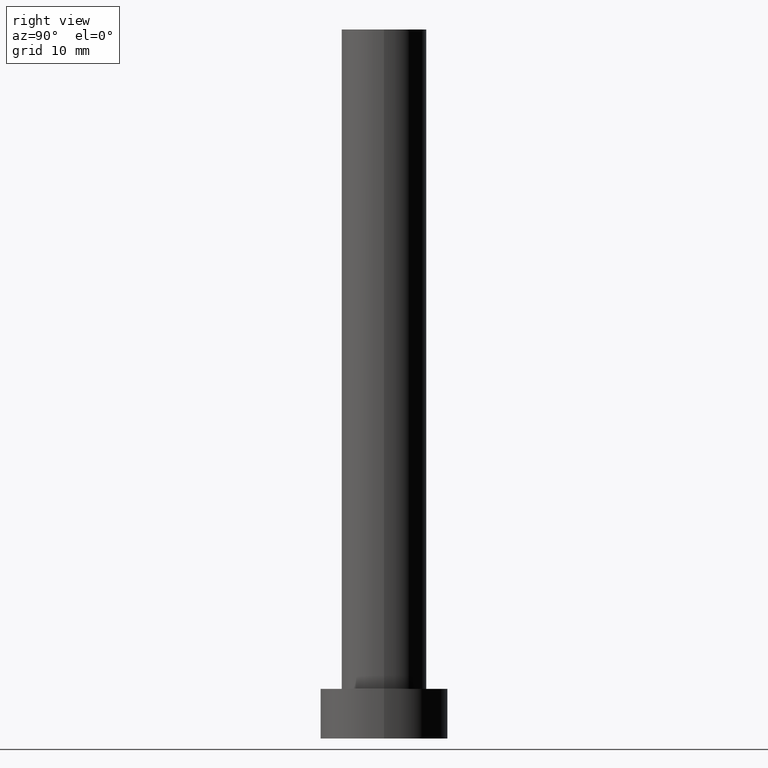
[diagram: clean part render]
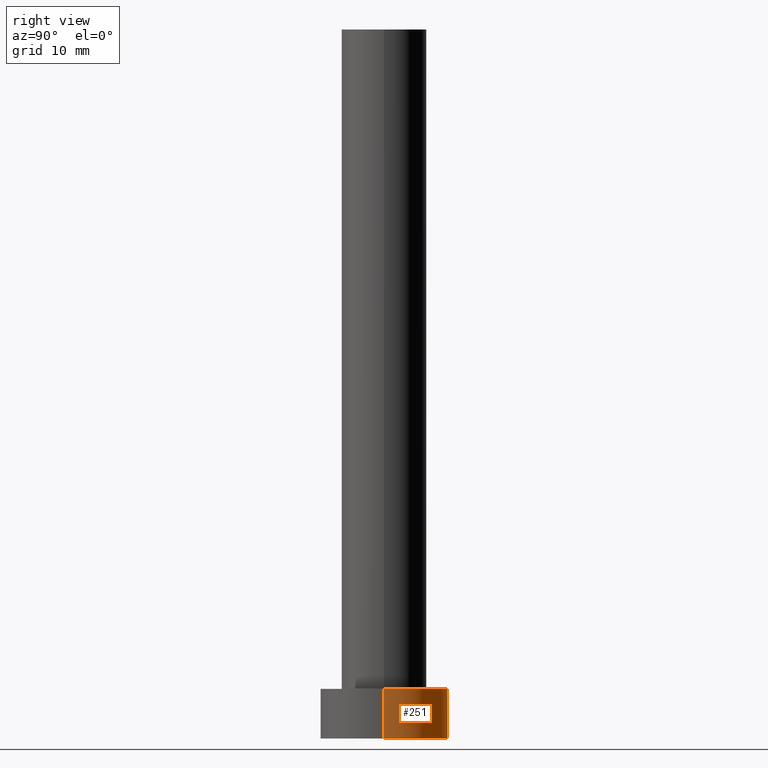
[diagram: same view with one face highlighted and labeled with its STEP entity id]
A machine part, right view. The second image highlights one B-rep face of the part: STEP entity #251.
In plain terms, the highlighted cylindrical surface (partial cylindrical patch) has radius 9 mm, axis along (-0, -0, -1).
Its self-contained STEP definition (entity closure, byte-faithful):
#1 = EDGE_CURVE ( 'NONE', #107, #247, #118, .T. ) ;
#3 = VERTEX_POINT ( 'NONE', #224 ) ;
#9 = CARTESIAN_POINT ( 'NONE',  ( 0.000000000000000000, 0.000000000000000000, 7.000000000000000000 ) ) ;
#32 = DIRECTION ( 'NONE',  ( 0.000000000000000000, 0.000000000000000000, 1.000000000000000000 ) ) ;
#47 = AXIS2_PLACEMENT_3D ( 'NONE', #84, #138, #117 ) ;
#49 = AXIS2_PLACEMENT_3D ( 'NONE', #9, #32, #230 ) ;
#69 = CARTESIAN_POINT ( 'NONE',  ( 9.000000000000000000, 1.102182119232617714E-15, 7.000000000000000000 ) ) ;
#73 = ORIENTED_EDGE ( 'NONE', *, *, #201, .F. ) ;
#74 = VERTEX_POINT ( 'NONE', #233 ) ;
#83 = FACE_OUTER_BOUND ( 'NONE', #93, .T. ) ;
#84 = CARTESIAN_POINT ( 'NONE',  ( 0.000000000000000000, 0.000000000000000000, 7.000000000000000000 ) ) ;
#87 = CYLINDRICAL_SURFACE ( 'NONE', #47, 9.000000000000000000 ) ;
#93 = EDGE_LOOP ( 'NONE', ( #188, #122, #141, #73 ) ) ;
#104 = CARTESIAN_POINT ( 'NONE',  ( -9.000000000000000000, 0.000000000000000000, 7.000000000000000000 ) ) ;
#107 = VERTEX_POINT ( 'NONE', #69 ) ;
#115 = CARTESIAN_POINT ( 'NONE',  ( 9.000000000000000000, 1.102182119232617714E-15, 7.000000000000000000 ) ) ;
#117 = DIRECTION ( 'NONE',  ( -1.000000000000000000, 0.000000000000000000, 0.000000000000000000 ) ) ;
#118 = CIRCLE ( 'NONE', #49, 9.000000000000000000 ) ;
#122 = ORIENTED_EDGE ( 'NONE', *, *, #221, .T. ) ;
#138 = DIRECTION ( 'NONE',  ( -0.000000000000000000, -0.000000000000000000, -1.000000000000000000 ) ) ;
#141 = ORIENTED_EDGE ( 'NONE', *, *, #167, .T. ) ;
#167 = EDGE_CURVE ( 'NONE', #74, #3, #172, .T. ) ;
#172 = CIRCLE ( 'NONE', #208, 9.000000000000000000 ) ;
#186 = LINE ( 'NONE', #207, #235 ) ;
#188 = ORIENTED_EDGE ( 'NONE', *, *, #1, .F. ) ;
#190 = CARTESIAN_POINT ( 'NONE',  ( 0.000000000000000000, 0.000000000000000000, 0.000000000000000000 ) ) ;
#192 = DIRECTION ( 'NONE',  ( 1.000000000000000000, 0.000000000000000000, 0.000000000000000000 ) ) ;
#198 = DIRECTION ( 'NONE',  ( -0.000000000000000000, -0.000000000000000000, -1.000000000000000000 ) ) ;
#201 = EDGE_CURVE ( 'NONE', #247, #3, #186, .T. ) ;
#207 = CARTESIAN_POINT ( 'NONE',  ( -9.000000000000000000, 0.000000000000000000, 7.000000000000000000 ) ) ;
#208 = AXIS2_PLACEMENT_3D ( 'NONE', #190, #244, #192 ) ;
#213 = LINE ( 'NONE', #115, #225 ) ;
#221 = EDGE_CURVE ( 'NONE', #107, #74, #213, .T. ) ;
#224 = CARTESIAN_POINT ( 'NONE',  ( -9.000000000000000000, 0.000000000000000000, 0.000000000000000000 ) ) ;
#225 = VECTOR ( 'NONE', #198, 1000.000000000000000 ) ;
#229 = DIRECTION ( 'NONE',  ( -0.000000000000000000, -0.000000000000000000, -1.000000000000000000 ) ) ;
#230 = DIRECTION ( 'NONE',  ( 1.000000000000000000, 0.000000000000000000, 0.000000000000000000 ) ) ;
#233 = CARTESIAN_POINT ( 'NONE',  ( 9.000000000000000000, 1.102182119232617714E-15, 0.000000000000000000 ) ) ;
#235 = VECTOR ( 'NONE', #229, 1000.000000000000000 ) ;
#244 = DIRECTION ( 'NONE',  ( 0.000000000000000000, 0.000000000000000000, 1.000000000000000000 ) ) ;
#247 = VERTEX_POINT ( 'NONE', #104 ) ;
#251 = ADVANCED_FACE ( 'NONE', ( #83 ), #87, .T. ) ;